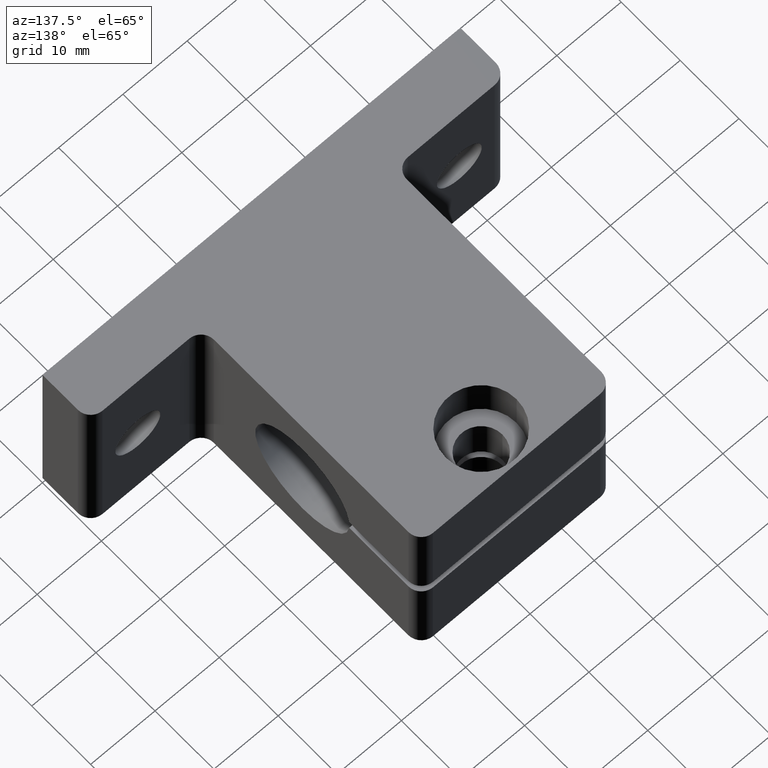
[diagram: clean part render]
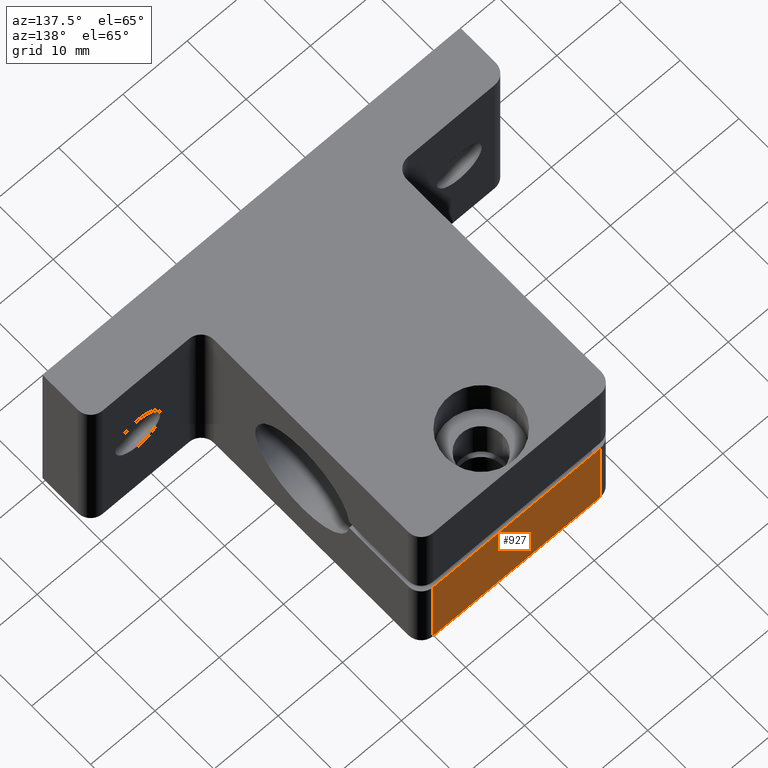
[diagram: same view with one face highlighted and labeled with its STEP entity id]
A machine part, auxiliary view. The second image highlights one B-rep face of the part: STEP entity #927.
In plain terms, the highlighted planar face has unit normal (-0, 1, 0).
Its self-contained STEP definition (entity closure, byte-faithful):
#54 = DIRECTION ( 'NONE',  ( -1.067522139062650400E-016, 1.000000000000000000, 0.0000000000000000000 ) ) ;
#55 = CARTESIAN_POINT ( 'NONE',  ( -19.50000000000000400, 45.00000000000000700, -14.74999999999999800 ) ) ;
#81 = VERTEX_POINT ( 'NONE', #373 ) ;
#90 = VERTEX_POINT ( 'NONE', #55 ) ;
#104 = CARTESIAN_POINT ( 'NONE',  ( 0.0000000000000000000, 45.00000000000000000, -28.00000000000000000 ) ) ;
#133 = DIRECTION ( 'NONE',  ( 0.0000000000000000000, 0.0000000000000000000, 1.000000000000000000 ) ) ;
#136 = PLANE ( 'NONE',  #567 ) ;
#158 = CARTESIAN_POINT ( 'NONE',  ( -19.50000000000000400, 45.00000000000000000, -28.00000000000000000 ) ) ;
#166 = DIRECTION ( 'NONE',  ( 1.000000000000000000, 9.376883653928687400E-017, -0.0000000000000000000 ) ) ;
#180 = CARTESIAN_POINT ( 'NONE',  ( -45.50000000000000000, 45.00000000000000000, -14.74999999999999800 ) ) ;
#187 = VERTEX_POINT ( 'NONE', #180 ) ;
#206 = DIRECTION ( 'NONE',  ( -0.0000000000000000000, -0.0000000000000000000, -1.000000000000000000 ) ) ;
#214 = CARTESIAN_POINT ( 'NONE',  ( -65.00000000000000000, 45.00000000000000000, -14.74999999999999800 ) ) ;
#247 = CARTESIAN_POINT ( 'NONE',  ( -19.50000000000000400, 45.00000000000000000, -28.00000000000000000 ) ) ;
#291 = DIRECTION ( 'NONE',  ( -1.000000000000000000, -1.067522139062650400E-016, 0.0000000000000000000 ) ) ;
#299 = DIRECTION ( 'NONE',  ( -1.000000000000000000, -1.067522139062650400E-016, 0.0000000000000000000 ) ) ;
#312 = CARTESIAN_POINT ( 'NONE',  ( -45.50000000000000000, 44.99999999999999300, -14.74999999999999800 ) ) ;
#373 = CARTESIAN_POINT ( 'NONE',  ( -45.50000000000000000, 44.99999999999999300, -28.00000000000000000 ) ) ;
#375 = VERTEX_POINT ( 'NONE', #158 ) ;
#446 = CARTESIAN_POINT ( 'NONE',  ( 0.0000000000000000000, 45.00000000000000000, -28.00000000000000000 ) ) ;
#494 = VECTOR ( 'NONE', #291, 1000.000000000000000 ) ;
#500 = LINE ( 'NONE', #104, #494 ) ;
#501 = LINE ( 'NONE', #312, #513 ) ;
#507 = LINE ( 'NONE', #247, #510 ) ;
#510 = VECTOR ( 'NONE', #206, 1000.000000000000000 ) ;
#513 = VECTOR ( 'NONE', #133, 1000.000000000000000 ) ;
#567 = AXIS2_PLACEMENT_3D ( 'NONE', #446, #54, #299 ) ;
#736 = ORIENTED_EDGE ( 'NONE', *, *, #1108, .T. ) ;
#747 = ORIENTED_EDGE ( 'NONE', *, *, #1087, .T. ) ;
#750 = ORIENTED_EDGE ( 'NONE', *, *, #1106, .T. ) ;
#756 = ORIENTED_EDGE ( 'NONE', *, *, #1117, .T. ) ;
#849 = FACE_OUTER_BOUND ( 'NONE', #998, .T. ) ;
#927 = ADVANCED_FACE ( 'NONE', ( #849 ), #136, .T. ) ;
#956 = LINE ( 'NONE', #214, #962 ) ;
#962 = VECTOR ( 'NONE', #166, 1000.000000000000000 ) ;
#998 = EDGE_LOOP ( 'NONE', ( #756, #750, #747, #736 ) ) ;
#1087 = EDGE_CURVE ( 'NONE', #187, #90, #956, .T. ) ;
#1106 = EDGE_CURVE ( 'NONE', #81, #187, #501, .T. ) ;
#1108 = EDGE_CURVE ( 'NONE', #90, #375, #507, .T. ) ;
#1117 = EDGE_CURVE ( 'NONE', #375, #81, #500, .T. ) ;